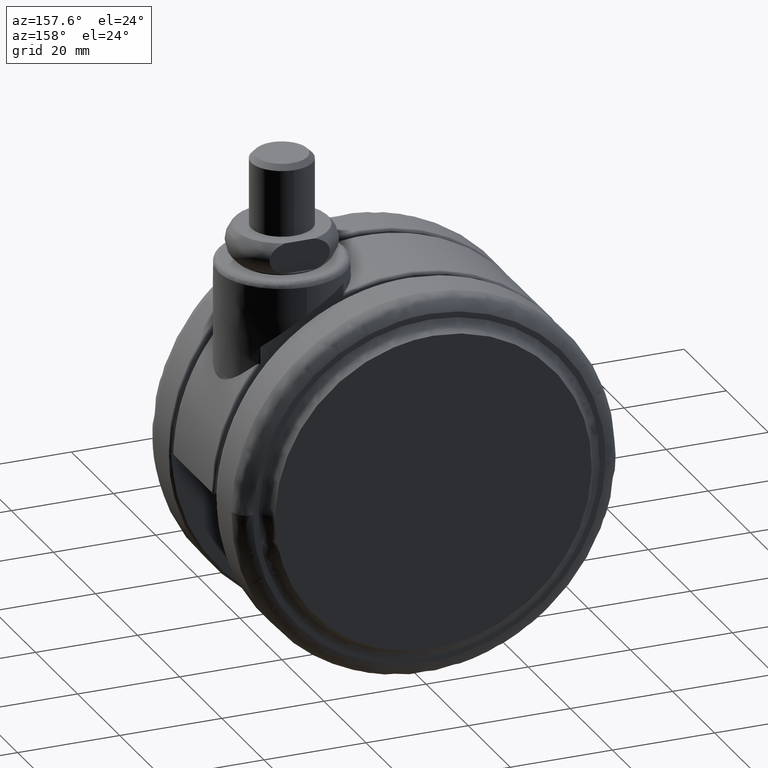
[diagram: clean part render]
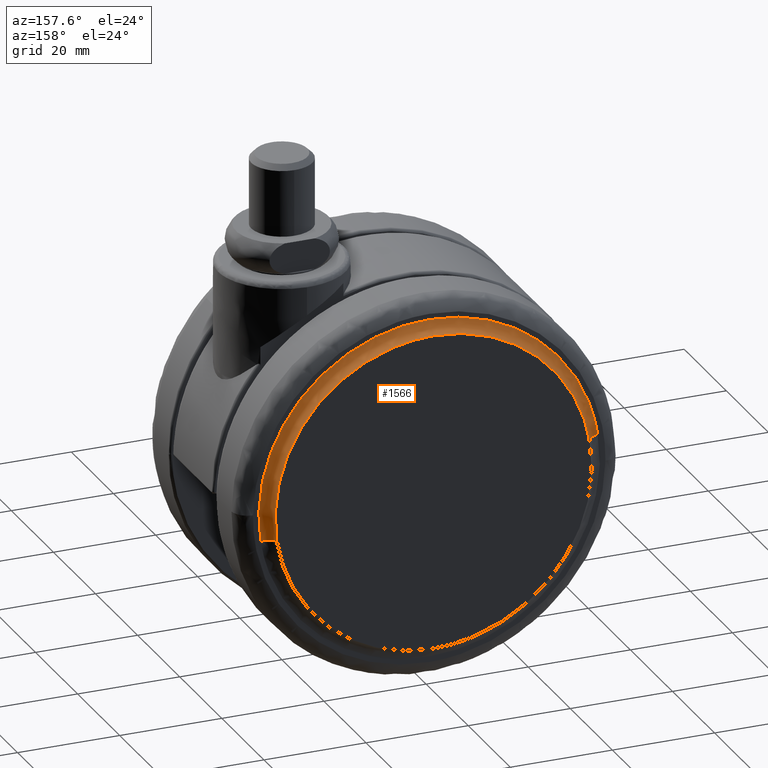
[diagram: same view with one face highlighted and labeled with its STEP entity id]
A machine part, auxiliary view. The second image highlights one B-rep face of the part: STEP entity #1566.
In plain terms, the highlighted face is a freeform B-spline surface patch.
Its self-contained STEP definition (entity closure, byte-faithful):
#1340=CARTESIAN_POINT('',(-20.0,21.500000000000000,-7.116724942436252));
#1341=VERTEX_POINT('',#1340);
#1342=CARTESIAN_POINT('',(-53.004433129182772,21.499999999864560,-35.484977837854757));
#1343=VERTEX_POINT('',#1342);
#1344=CARTESIAN_POINT('',(-20.0,21.500000000000000,-7.116724942436252));
#1345=CARTESIAN_POINT('',(-48.693878350418096,21.499999999932285,-7.116724942552639));
#1346=CARTESIAN_POINT('',(-53.004433129182772,21.499999999864563,-35.484977837854764));
#1354=(BOUNDED_CURVE()B_SPLINE_CURVE(2,(#1344,#1345,#1346),.UNSPECIFIED.,.F.,.U.)B_SPLINE_CURVE_WITH_KNOTS((3,3),(0.500000000000000,0.724102415376154),.UNSPECIFIED.)CURVE()GEOMETRIC_REPRESENTATION_ITEM()RATIONAL_B_SPLINE_CURVE((1.0,0.737447688866436,0.945604234433857))REPRESENTATION_ITEM(''));
#1355=EDGE_CURVE('',#1341,#1343,#1354,.T.);
#1374=CARTESIAN_POINT('',(13.004433129182770,21.499999999864510,-45.515022162145243));
#1375=VERTEX_POINT('',#1374);
#1389=CARTESIAN_POINT('',(13.004433129182775,21.499999999864510,-45.515022162145243));
#1390=CARTESIAN_POINT('',(13.383275056081597,21.499999999868908,-43.021820210703574));
#1391=CARTESIAN_POINT('',(13.383275056139460,21.499999999874021,-40.499999999783569));
#1392=CARTESIAN_POINT('',(13.383275056905401,21.499999999941764,-7.116724942336212));
#1393=CARTESIAN_POINT('',(-20.0,21.500000000000000,-7.116724942436252));
#1401=(BOUNDED_CURVE()B_SPLINE_CURVE(2,(#1389,#1390,#1391,#1392,#1393),.UNSPECIFIED.,.F.,.U.)B_SPLINE_CURVE_WITH_KNOTS((3,2,3),(0.224102415376154,0.250000000000000,0.500000000000000),.UNSPECIFIED.)CURVE()GEOMETRIC_REPRESENTATION_ITEM()RATIONAL_B_SPLINE_CURVE((0.945604234433857,0.969659092320111,1.0,0.707106781186547,1.0))REPRESENTATION_ITEM(''));
#1402=EDGE_CURVE('',#1375,#1341,#1401,.T.);
#1438=CARTESIAN_POINT('',(-50.648204086947374,23.499999999138350,-35.843006737228443));
#1439=VERTEX_POINT('',#1438);
#1440=CARTESIAN_POINT('',(-50.648204086947374,23.499999999138350,-35.843006737228436));
#1441=CARTESIAN_POINT('',(-50.837666864773382,21.308362472842550,-35.814217876442605));
#1442=CARTESIAN_POINT('',(-53.004433129182772,21.499999999864556,-35.484977837854764));
#1450=(BOUNDED_CURVE()B_SPLINE_CURVE(2,(#1440,#1441,#1442),.UNSPECIFIED.,.F.,.U.)B_SPLINE_CURVE_WITH_KNOTS((3,3),(-1.724209565163664,-0.264358934088693),.UNSPECIFIED.)CURVE()GEOMETRIC_REPRESENTATION_ITEM()RATIONAL_B_SPLINE_CURVE((0.884168488113023,0.626637108813153,0.888233568576773))REPRESENTATION_ITEM(''));
#1451=EDGE_CURVE('',#1439,#1343,#1450,.T.);
#1470=CARTESIAN_POINT('',(10.648204086947370,23.499999999138350,-45.156993262771557));
#1471=VERTEX_POINT('',#1470);
#1485=CARTESIAN_POINT('',(10.648204086947368,23.499999999138357,-45.156993262771564));
#1486=CARTESIAN_POINT('',(10.837666864773288,21.308362472842447,-45.185782123557381));
#1487=CARTESIAN_POINT('',(13.004433129182772,21.499999999864510,-45.515022162145236));
#1495=(BOUNDED_CURVE()B_SPLINE_CURVE(2,(#1485,#1486,#1487),.UNSPECIFIED.,.F.,.U.)B_SPLINE_CURVE_WITH_KNOTS((3,3),(-1.724209565163709,-0.264358934088690),.UNSPECIFIED.)CURVE()GEOMETRIC_REPRESENTATION_ITEM()RATIONAL_B_SPLINE_CURVE((0.884168488113039,0.626637108813144,0.888233568576774))REPRESENTATION_ITEM(''));
#1496=EDGE_CURVE('',#1471,#1375,#1495,.T.);
#1501=CARTESIAN_POINT('',(-50.770428663722178,23.653227525717629,-36.700814555966033));
#1502=CARTESIAN_POINT('',(-50.705727361903762,23.653227525717632,-36.275007905421432));
#1503=CARTESIAN_POINT('',(-45.984480656841406,23.653227525717615,-5.203944582474812));
#1504=CARTESIAN_POINT('',(-15.344212619658107,23.653227525717572,-9.859731962816699));
#1505=CARTESIAN_POINT('',(15.296055417525183,23.653227525717519,-14.515519343158587));
#1506=CARTESIAN_POINT('',(10.574808712456351,23.653227525717533,-45.586582666147983));
#1507=CARTESIAN_POINT('',(10.510107410631576,23.653227525717540,-46.012389316734378));
#1508=CARTESIAN_POINT('',(-50.814279000540296,21.123925171574498,-36.695400411003149));
#1509=CARTESIAN_POINT('',(-50.749485494160517,21.123925171574491,-36.268986951718567));
#1510=CARTESIAN_POINT('',(-46.021510632643782,21.123925171574488,-5.153644863373610));
#1511=CARTESIAN_POINT('',(-15.337577748008696,21.123925171574438,-9.816067115364914));
#1512=CARTESIAN_POINT('',(15.346355136626382,21.123925171574388,-14.478489367356225));
#1513=CARTESIAN_POINT('',(10.618380275103146,21.123925171574410,-45.593831455744031));
#1514=CARTESIAN_POINT('',(10.553586768717018,21.123925171574399,-46.020244915070471));
#1515=CARTESIAN_POINT('',(-53.295131359007023,21.518574478330805,-36.389092745546520));
#1516=CARTESIAN_POINT('',(-53.225121338454947,21.518574478330805,-35.928348811220509));
#1517=CARTESIAN_POINT('',(-48.116498025427809,21.518574478330802,-2.307915826443515));
#1518=CARTESIAN_POINT('',(-14.962206925935661,21.518574478330741,-7.345708900507846));
#1519=CARTESIAN_POINT('',(18.192084173556481,21.518574478330692,-12.383501974572185));
#1520=CARTESIAN_POINT('',(13.083460860522312,21.518574478330699,-46.003934959395487));
#1521=CARTESIAN_POINT('',(13.013450839963371,21.518574478330695,-46.464678893766731));
#1529=(BOUNDED_SURFACE()B_SPLINE_SURFACE(2,2,((#1501,#1508,#1515),(#1502,#1509,#1516),(#1503,#1510,#1517),(#1504,#1511,#1518),(#1505,#1512,#1519),(#1506,#1513,#1520),(#1507,#1514,#1521)),.UNSPECIFIED.,.F.,.F.,.U.)B_SPLINE_SURFACE_WITH_KNOTS((3,1,2,1,3),(3,3),(0.0,1.111247279710914,56.673611266296611,112.235975252882300,113.347222532704190),(0.0,4.010137234198989),.UNSPECIFIED.)GEOMETRIC_REPRESENTATION_ITEM()RATIONAL_B_SPLINE_SURFACE(((0.921866358362116,0.606433994689924,0.926389929177877),(0.916528724532020,0.602922723694496,0.921026103737250),(0.644309399192096,0.423847902924391,0.647471006260266),(0.911191090701923,0.599411452699068,0.915662278296624),(0.644309399192096,0.423847902924391,0.647471006260266),(0.916528724532553,0.602922723694847,0.921026103737786),(0.921866358363183,0.606433994690626,0.926389929178949)))REPRESENTATION_ITEM('')SURFACE());
#1530=ORIENTED_EDGE('',*,*,#1402,.F.);
#1531=ORIENTED_EDGE('',*,*,#1496,.F.);
#1532=CARTESIAN_POINT('',(-20.0,23.500000000000000,-9.500000000000002));
#1533=VERTEX_POINT('',#1532);
#1534=CARTESIAN_POINT('',(10.648204086947372,23.499999999138357,-45.156993262771564));
#1535=CARTESIAN_POINT('',(11.000000000072161,23.499999999166324,-42.841784213905179));
#1536=CARTESIAN_POINT('',(11.000000000069340,23.499999999198870,-40.500000000010537));
#1537=CARTESIAN_POINT('',(11.000000000032053,23.499999999629690,-9.500000000004876));
#1538=CARTESIAN_POINT('',(-20.0,23.500000000000000,-9.500000000000002));
#1546=(BOUNDED_CURVE()B_SPLINE_CURVE(2,(#1534,#1535,#1536,#1537,#1538),.UNSPECIFIED.,.F.,.U.)B_SPLINE_CURVE_WITH_KNOTS((3,2,3),(0.224102415376443,0.250000000000000,0.500000000000000),.UNSPECIFIED.)CURVE()GEOMETRIC_REPRESENTATION_ITEM()RATIONAL_B_SPLINE_CURVE((0.945604234434395,0.969659092320451,1.0,0.707106781186548,1.0))REPRESENTATION_ITEM(''));
#1547=EDGE_CURVE('',#1471,#1533,#1546,.T.);
#1548=ORIENTED_EDGE('',*,*,#1547,.T.);
#1549=CARTESIAN_POINT('',(-20.0,23.500000000000000,-9.500000000000002));
#1550=CARTESIAN_POINT('',(-46.645385372037346,23.499999999569180,-9.499999999994335));
#1551=CARTESIAN_POINT('',(-50.648204086947381,23.499999999138357,-35.843006737228428));
#1559=(BOUNDED_CURVE()B_SPLINE_CURVE(2,(#1549,#1550,#1551),.UNSPECIFIED.,.F.,.U.)B_SPLINE_CURVE_WITH_KNOTS((3,3),(0.500000000000000,0.724102415376443),.UNSPECIFIED.)CURVE()GEOMETRIC_REPRESENTATION_ITEM()RATIONAL_B_SPLINE_CURVE((1.0,0.737447688866097,0.945604234434395))REPRESENTATION_ITEM(''));
#1560=EDGE_CURVE('',#1533,#1439,#1559,.T.);
#1561=ORIENTED_EDGE('',*,*,#1560,.T.);
#1562=ORIENTED_EDGE('',*,*,#1451,.T.);
#1563=ORIENTED_EDGE('',*,*,#1355,.F.);
#1564=EDGE_LOOP('',(#1530,#1531,#1548,#1561,#1562,#1563));
#1565=FACE_OUTER_BOUND('',#1564,.T.);
#1566=ADVANCED_FACE('',(#1565),#1529,.F.);